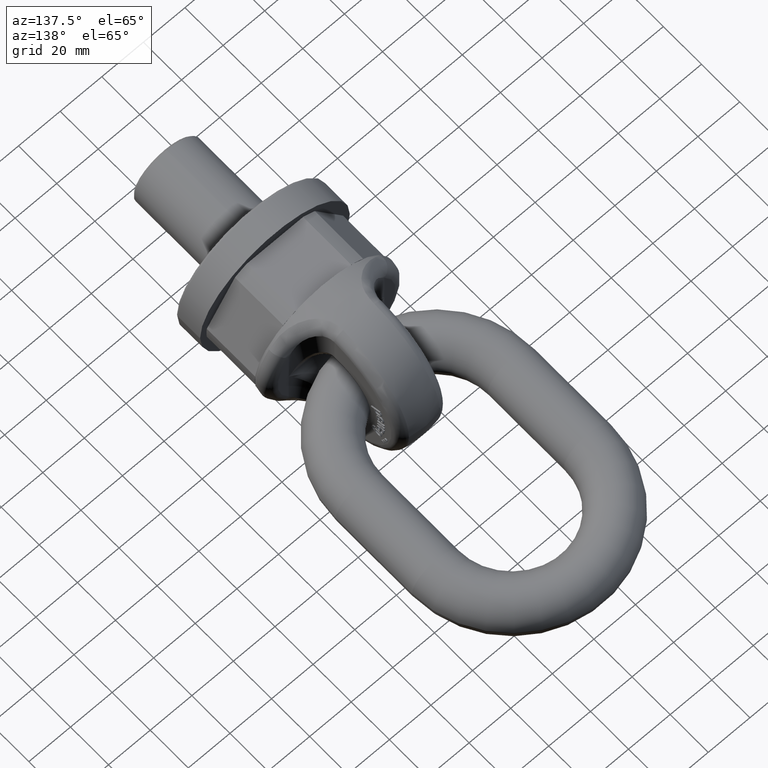
[diagram: clean part render]
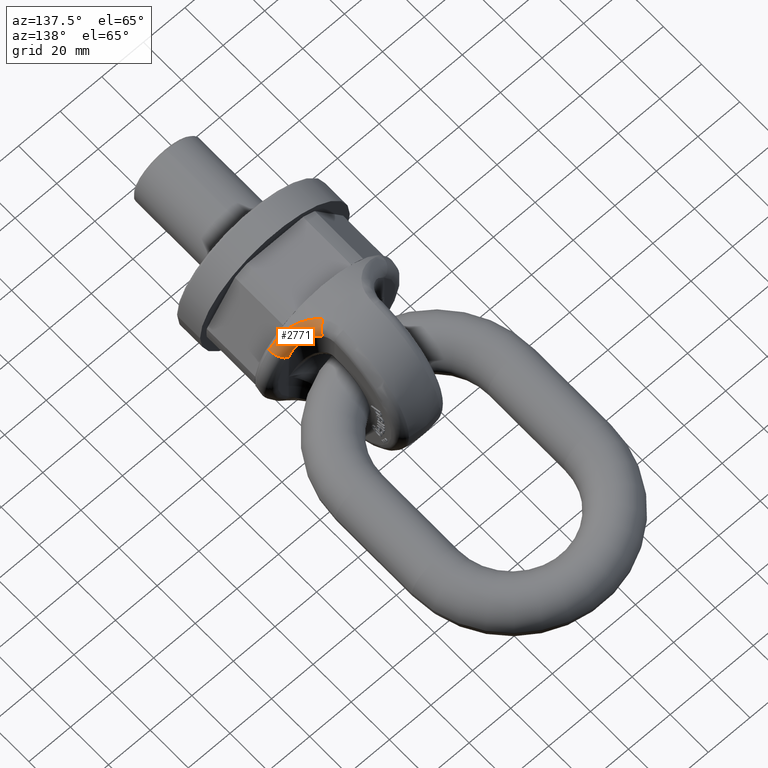
[diagram: same view with one face highlighted and labeled with its STEP entity id]
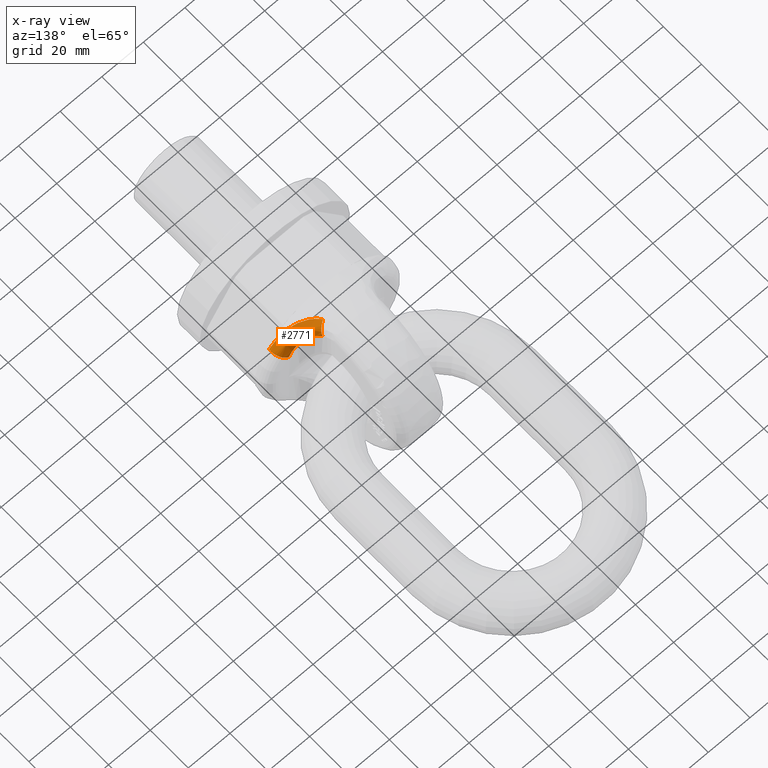
[diagram: x-ray of the same camera — body ghosted, the highlighted face saturated]
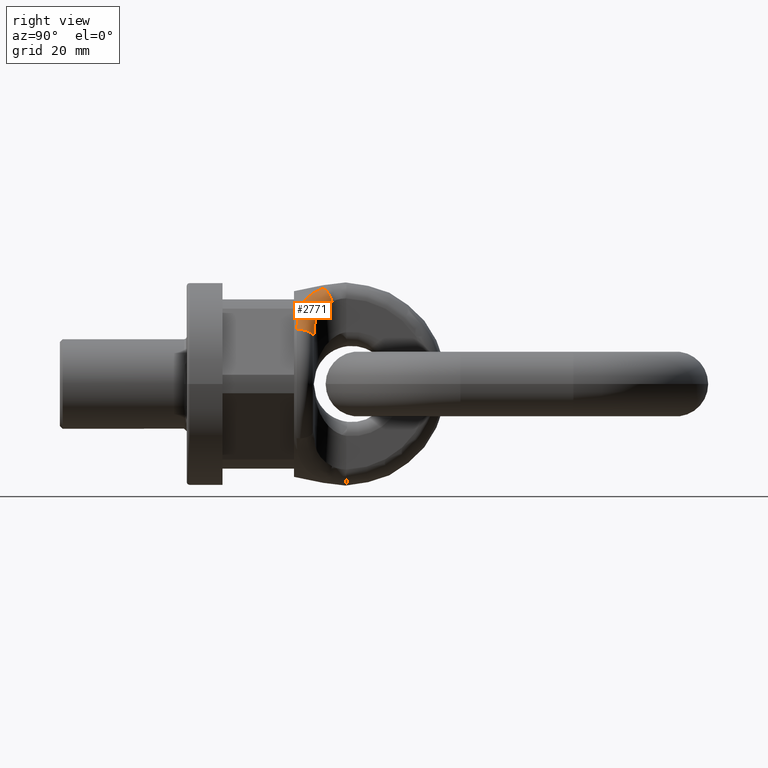
[diagram: same view with one face highlighted and labeled with its STEP entity id]
A machine part, auxiliary view. The second image highlights one B-rep face of the part: STEP entity #2771.
The next image is the same camera in x-ray: the body ghosted, the highlighted face saturated — about 0% of this face is hidden behind the body in this view.
A second angle (right view) of the same face is appended — the face is thin or edge-on in the first view.
In plain terms, the highlighted face is a freeform B-spline surface patch.
Its self-contained STEP definition (entity closure, byte-faithful):
#213=(
BOUNDED_SURFACE()
B_SPLINE_SURFACE(3,2,((#8136,#8137,#8138),(#8139,#8140,#8141),(#8142,#8143,
#8144),(#8145,#8146,#8147),(#8148,#8149,#8150),(#8151,#8152,#8153),(#8154,
#8155,#8156),(#8157,#8158,#8159),(#8160,#8161,#8162),(#8163,#8164,#8165)),
 .UNSPECIFIED.,.F.,.F.,.F.)
B_SPLINE_SURFACE_WITH_KNOTS((4,2,2,2,4),(3,3),(0.,0.25,0.5,0.75,1.),(0.,
1.),.UNSPECIFIED.)
GEOMETRIC_REPRESENTATION_ITEM()
RATIONAL_B_SPLINE_SURFACE(((1.,0.756186006667587,1.),(1.,0.753475766484291,
1.),(1.,0.751562005034905,1.),(1.,0.743443026573628,1.),(1.,0.737264247073174,
1.),(1.,0.716975984561228,1.),(1.,0.703050836335662,1.),(1.,0.668680991395167,
1.),(1.,0.648239873067454,1.),(1.,0.626844815130115,1.)))
REPRESENTATION_ITEM('')
SURFACE()
);
#353=B_SPLINE_CURVE_WITH_KNOTS('',3,(#6985,#6986,#6987,#6988,#6989,#6990),
 .UNSPECIFIED.,.F.,.F.,(4,2,4),(0.,0.5,1.),.UNSPECIFIED.);
#359=B_SPLINE_CURVE_WITH_KNOTS('',3,(#7037,#7038,#7039,#7040,#7041,#7042),
 .UNSPECIFIED.,.F.,.F.,(4,2,4),(0.,0.5,1.),.UNSPECIFIED.);
#1915=FACE_OUTER_BOUND('',#3215,.T.);
#2771=ADVANCED_FACE('',(#1915),#213,.T.);
#3215=EDGE_LOOP('',(#3976,#3977,#3978,#3979));
#3976=ORIENTED_EDGE('',*,*,#5263,.T.);
#3977=ORIENTED_EDGE('',*,*,#5061,.F.);
#3978=ORIENTED_EDGE('',*,*,#5265,.F.);
#3979=ORIENTED_EDGE('',*,*,#5071,.F.);
#4649=VERTEX_POINT('',#6971);
#4650=VERTEX_POINT('',#6984);
#4658=VERTEX_POINT('',#7036);
#4659=VERTEX_POINT('',#7043);
#5061=EDGE_CURVE('',#4650,#4649,#353,.T.);
#5071=EDGE_CURVE('',#4658,#4659,#359,.T.);
#5263=EDGE_CURVE('',#4658,#4649,#5576,.T.);
#5265=EDGE_CURVE('',#4659,#4650,#5578,.T.);
#5576=CIRCLE('',#5720,5.);
#5578=CIRCLE('',#5723,5.);
#5720=AXIS2_PLACEMENT_3D('',#8120,#6229,#6230);
#5723=AXIS2_PLACEMENT_3D('',#8135,#6235,#6236);
#6229=DIRECTION('',(-0.57977792062605,5.65363413858044E-16,0.814774547193599));
#6230=DIRECTION('',(0.814774547193599,0.,0.57977792062605));
#6235=DIRECTION('',(-0.411349245463737,0.857272549014313,0.3096378125535));
#6236=DIRECTION('',(-0.901581136056468,-0.432610049706578,0.));
#6971=CARTESIAN_POINT('',(23.,45.,16.3663583016059));
#6984=CARTESIAN_POINT('',(12.6318169353506,51.5249844283744,29.170844144231));
#6985=CARTESIAN_POINT('',(12.6318169353506,51.5249844283744,29.170844144231));
#6986=CARTESIAN_POINT('',(13.8558592455315,48.9740185935709,27.8488612993835));
#6987=CARTESIAN_POINT('',(15.9113250080998,47.1822162585958,26.1578730647848));
#6988=CARTESIAN_POINT('',(19.8426271006275,45.22607418125,21.7367777284566));
#6989=CARTESIAN_POINT('',(21.6187700503174,45.,19.1513754385613));
#6990=CARTESIAN_POINT('',(23.,45.,16.3663583016059));
#7036=CARTESIAN_POINT('',(26.9793789246754,38.9293442225551,19.1980079233058));
#7037=CARTESIAN_POINT('',(26.9793789246754,38.9293442225551,19.1980079233058));
#7038=CARTESIAN_POINT('',(24.4615994059768,38.9293442225551,22.7362983519338));
#7039=CARTESIAN_POINT('',(21.3056991008732,39.3443178789869,25.7919690789316));
#7040=CARTESIAN_POINT('',(14.7601741336096,42.2178728566048,30.7168430122548));
#7041=CARTESIAN_POINT('',(11.4740973738557,44.6917908879162,32.488631803824));
#7042=CARTESIAN_POINT('',(9.43421952201471,48.2912784023965,33.8758190062038));
#7043=CARTESIAN_POINT('',(9.43421952201475,48.2912784023966,33.8758190062038));
#8120=CARTESIAN_POINT('',(23.,40.,16.3663583016059));
#8135=CARTESIAN_POINT('',(8.12391125506826,49.3619341798415,29.170844144231));
#8136=CARTESIAN_POINT('',(9.43421952201475,48.2912784023966,33.8758190062038));
#8137=CARTESIAN_POINT('',(13.2113877834192,50.3171295854706,33.2848986279388));
#8138=CARTESIAN_POINT('',(12.6318169353506,51.5249844283744,29.170844144231));
#8139=CARTESIAN_POINT('',(10.3712312174268,46.637864748572,33.2386187788596));
#8140=CARTESIAN_POINT('',(13.958789099632,49.1047970357778,32.680149212707));
#8141=CARTESIAN_POINT('',(13.1848074210422,50.372524399634,28.5736066730992));
#8142=CARTESIAN_POINT('',(11.5884715848811,45.1835065681765,32.5210854214419));
#8143=CARTESIAN_POINT('',(14.9082491384229,48.0461187964964,31.9882191177935));
#8144=CARTESIAN_POINT('',(13.9037932020385,49.3589616345727,27.9143083769447));
#8145=CARTESIAN_POINT('',(14.466818115528,42.6755213710946,30.7410069550338));
#8146=CARTESIAN_POINT('',(17.1851938301052,46.2650817154965,30.3149691622769));
#8147=CARTESIAN_POINT('',(15.6026634918777,47.6109719522668,26.3157941738862));
#8148=CARTESIAN_POINT('',(16.0694064159752,41.6782398834292,29.710384102593));
#8149=CARTESIAN_POINT('',(18.4839499549851,45.5831304095362,29.3520215910637));
#8150=CARTESIAN_POINT('',(16.5480332901528,46.9158969752713,25.4057355163028));
#8151=CARTESIAN_POINT('',(19.3786475564366,40.1611532012129,27.2596040041888));
#8152=CARTESIAN_POINT('',(21.2250254254305,44.6761715983342,27.1367955350588));
#8153=CARTESIAN_POINT('',(18.5008782407886,45.8585335310691,23.2706299340601));
#8154=CARTESIAN_POINT('',(21.0471356506463,39.6588778047726,25.8646337088612));
#8155=CARTESIAN_POINT('',(22.6624244046463,44.4684139779746,25.8792917201476));
#8156=CARTESIAN_POINT('',(19.4859830249862,45.5084627991276,22.0675634888234));
#8157=CARTESIAN_POINT('',(24.1942110036093,39.0432122253245,22.7516675332386));
#8158=CARTESIAN_POINT('',(25.4551110475455,44.4560090818927,23.1175831257406));
#8159=CARTESIAN_POINT('',(21.3473519647339,45.0793625479845,19.3979400062971));
#8160=CARTESIAN_POINT('',(25.6776639413007,38.9293442209169,21.0273363576309));
#8161=CARTESIAN_POINT('',(26.8345126732131,44.6706580051743,21.57240072372));
#8162=CARTESIAN_POINT('',(22.2263347585376,45.,17.9263237185972));
#8163=CARTESIAN_POINT('',(26.9793789246754,38.9293442225551,19.1980079233058));
#8164=CARTESIAN_POINT('',(28.0636680057618,45.,19.9695672104179));
#8165=CARTESIAN_POINT('',(23.,45.,16.3663583016059));